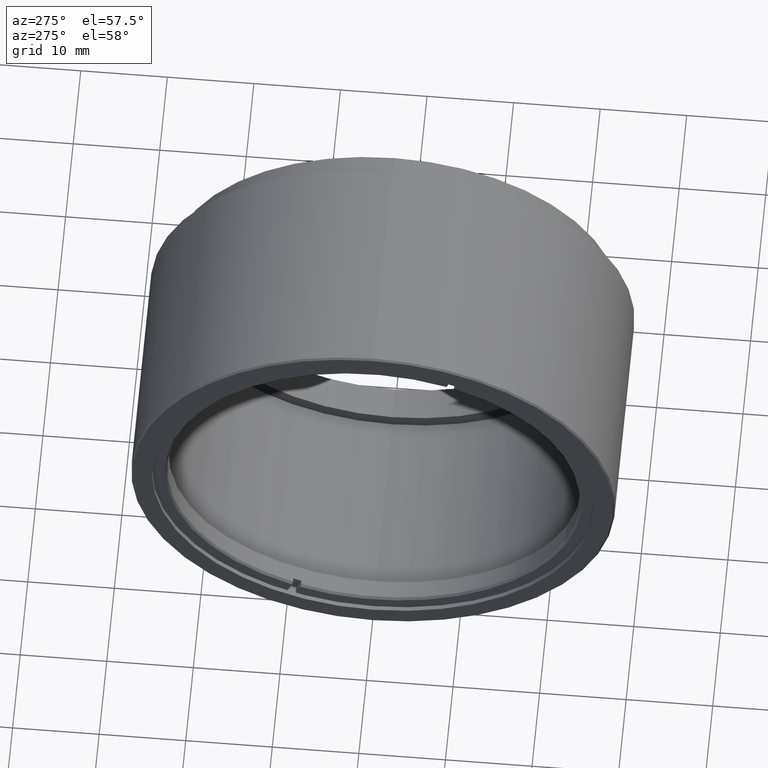
[diagram: clean part render]
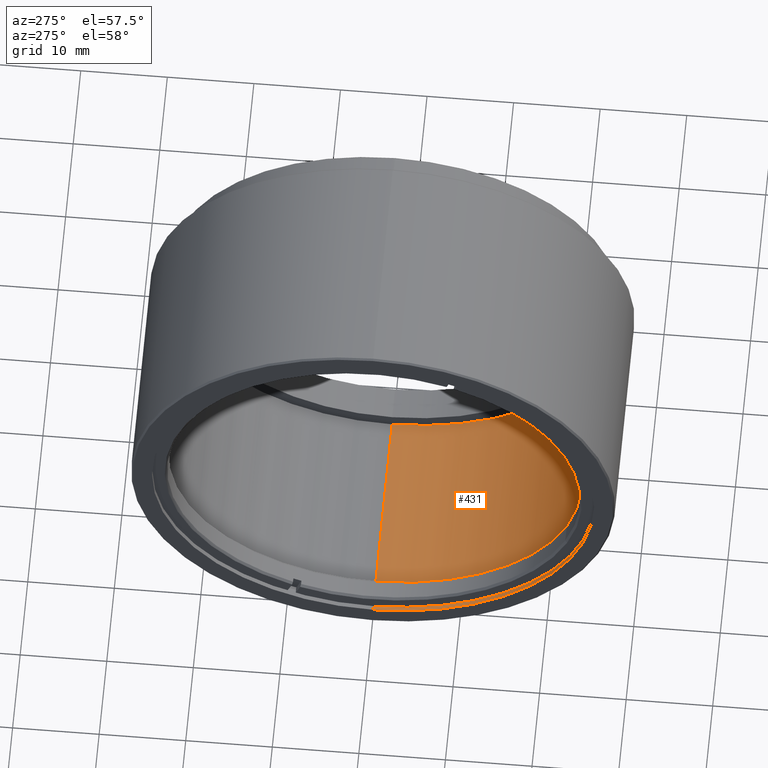
[diagram: same view with one face highlighted and labeled with its STEP entity id]
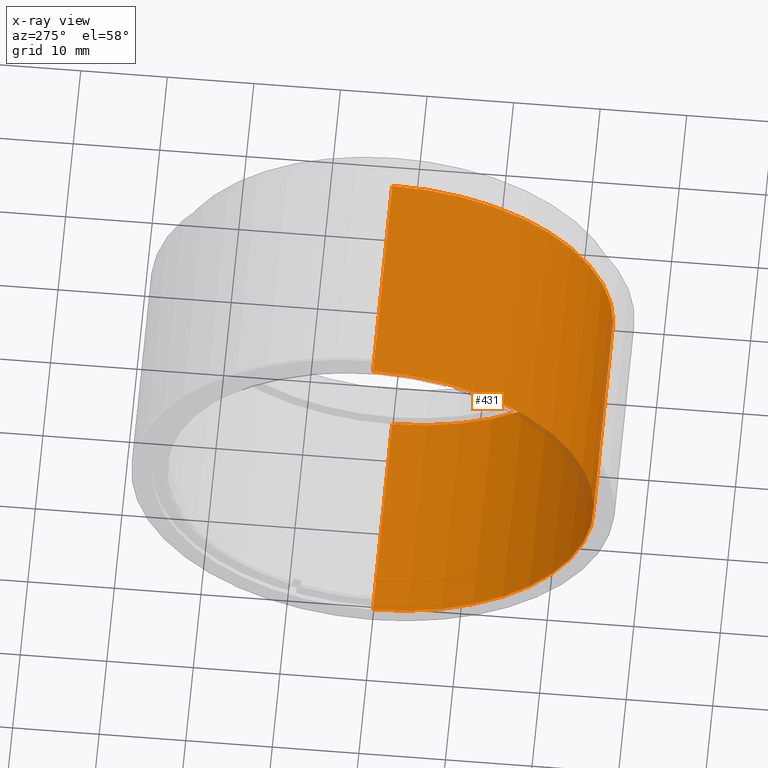
[diagram: x-ray of the same camera — body ghosted, the highlighted face saturated]
A machine part, auxiliary view. The second image highlights one B-rep face of the part: STEP entity #431.
The next image is the same camera in x-ray: the body ghosted, the highlighted face saturated — about 2% of this face is hidden behind the body in this view.
In plain terms, the highlighted cylindrical surface (partial cylindrical patch) has radius 25.525 mm, axis along (1, -0, -0).
Its self-contained STEP definition (entity closure, byte-faithful):
#17 = AXIS2_PLACEMENT_3D ( 'NONE', #407, #1292, #920 ) ;
#43 = CIRCLE ( 'NONE', #1068, 25.52499999999999858 ) ;
#77 = VERTEX_POINT ( 'NONE', #205 ) ;
#130 = LINE ( 'NONE', #1037, #603 ) ;
#205 = CARTESIAN_POINT ( 'NONE',  ( -22.67400000000001725, -20.10857142857141966, -25.52499999999999858 ) ) ;
#225 = ORIENTED_EDGE ( 'NONE', *, *, #949, .T. ) ;
#241 = AXIS2_PLACEMENT_3D ( 'NONE', #530, #1419, #410 ) ;
#269 = CARTESIAN_POINT ( 'NONE',  ( -22.67400000000001725, -20.10857142857141611, 25.52499999999999858 ) ) ;
#272 = DIRECTION ( 'NONE',  ( 1.000000000000000000, -0.000000000000000000, -0.000000000000000000 ) ) ;
#342 = EDGE_LOOP ( 'NONE', ( #225, #517, #1087, #759 ) ) ;
#348 = CARTESIAN_POINT ( 'NONE',  ( -22.67400000000001725, -20.10857142857141611, 25.52499999999999858 ) ) ;
#362 = VERTEX_POINT ( 'NONE', #387 ) ;
#369 = CIRCLE ( 'NONE', #241, 25.52499999999999858 ) ;
#382 = DIRECTION ( 'NONE',  ( -1.000000000000000000, 0.000000000000000000, 0.000000000000000000 ) ) ;
#387 = CARTESIAN_POINT ( 'NONE',  ( 2.725999999999982659, -20.10857142857141966, -25.52499999999999858 ) ) ;
#388 = CARTESIAN_POINT ( 'NONE',  ( 2.725999999999982659, -20.10857142857141966, 0.000000000000000000 ) ) ;
#392 = EDGE_CURVE ( 'NONE', #1598, #1150, #1591, .T. ) ;
#407 = CARTESIAN_POINT ( 'NONE',  ( -22.67400000000001725, -20.10857142857141966, 0.000000000000000000 ) ) ;
#410 = DIRECTION ( 'NONE',  ( 0.000000000000000000, 0.000000000000000000, 1.000000000000000000 ) ) ;
#431 = ADVANCED_FACE ( 'NONE', ( #1510 ), #961, .F. ) ;
#492 = VECTOR ( 'NONE', #1046, 1000.000000000000000 ) ;
#517 = ORIENTED_EDGE ( 'NONE', *, *, #392, .T. ) ;
#530 = CARTESIAN_POINT ( 'NONE',  ( -22.67400000000001725, -20.10857142857141966, 0.000000000000000000 ) ) ;
#603 = VECTOR ( 'NONE', #272, 1000.000000000000000 ) ;
#759 = ORIENTED_EDGE ( 'NONE', *, *, #937, .F. ) ;
#881 = DIRECTION ( 'NONE',  ( 0.000000000000000000, 0.000000000000000000, 1.000000000000000000 ) ) ;
#911 = EDGE_CURVE ( 'NONE', #362, #1150, #43, .T. ) ;
#920 = DIRECTION ( 'NONE',  ( 0.000000000000000000, 0.000000000000000000, -1.000000000000000000 ) ) ;
#937 = EDGE_CURVE ( 'NONE', #77, #362, #130, .T. ) ;
#949 = EDGE_CURVE ( 'NONE', #77, #1598, #369, .T. ) ;
#961 = CYLINDRICAL_SURFACE ( 'NONE', #17, 25.52499999999999858 ) ;
#1037 = CARTESIAN_POINT ( 'NONE',  ( -22.67400000000001725, -20.10857142857141966, -25.52499999999999858 ) ) ;
#1046 = DIRECTION ( 'NONE',  ( 1.000000000000000000, -0.000000000000000000, -0.000000000000000000 ) ) ;
#1068 = AXIS2_PLACEMENT_3D ( 'NONE', #388, #382, #881 ) ;
#1087 = ORIENTED_EDGE ( 'NONE', *, *, #911, .F. ) ;
#1150 = VERTEX_POINT ( 'NONE', #1338 ) ;
#1292 = DIRECTION ( 'NONE',  ( 1.000000000000000000, -0.000000000000000000, -0.000000000000000000 ) ) ;
#1338 = CARTESIAN_POINT ( 'NONE',  ( 2.725999999999982659, -20.10857142857141611, 25.52499999999999858 ) ) ;
#1419 = DIRECTION ( 'NONE',  ( -1.000000000000000000, 0.000000000000000000, 0.000000000000000000 ) ) ;
#1510 = FACE_OUTER_BOUND ( 'NONE', #342, .T. ) ;
#1591 = LINE ( 'NONE', #269, #492 ) ;
#1598 = VERTEX_POINT ( 'NONE', #348 ) ;